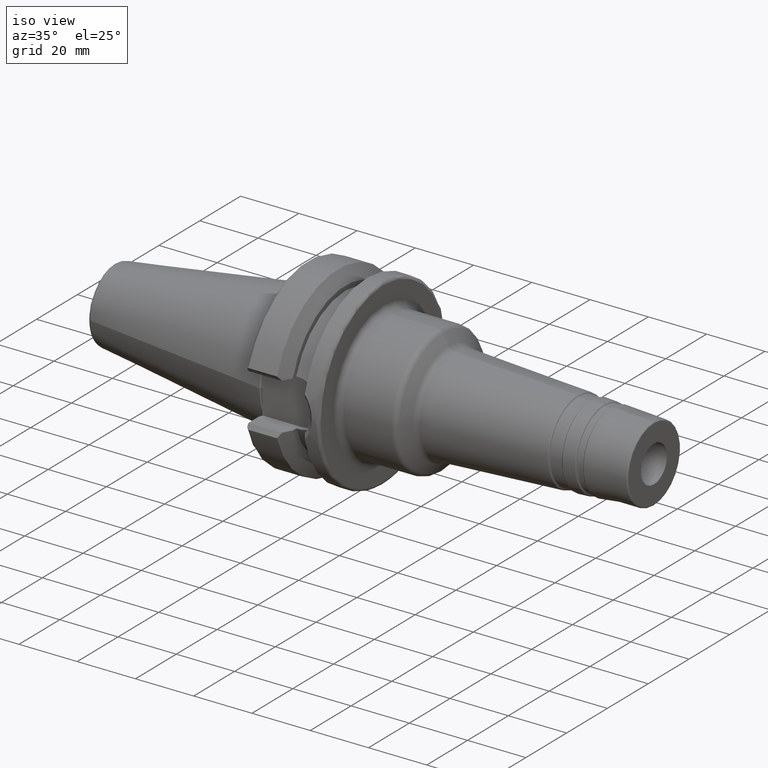
[diagram: clean part render]
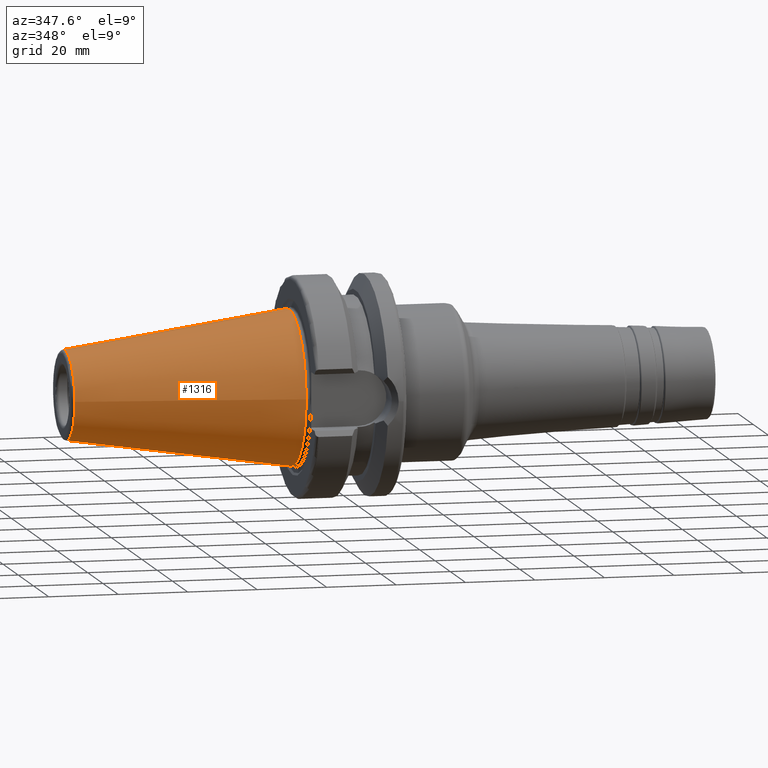
[diagram: tour spotlight — one face highlighted and labeled with its STEP entity id]
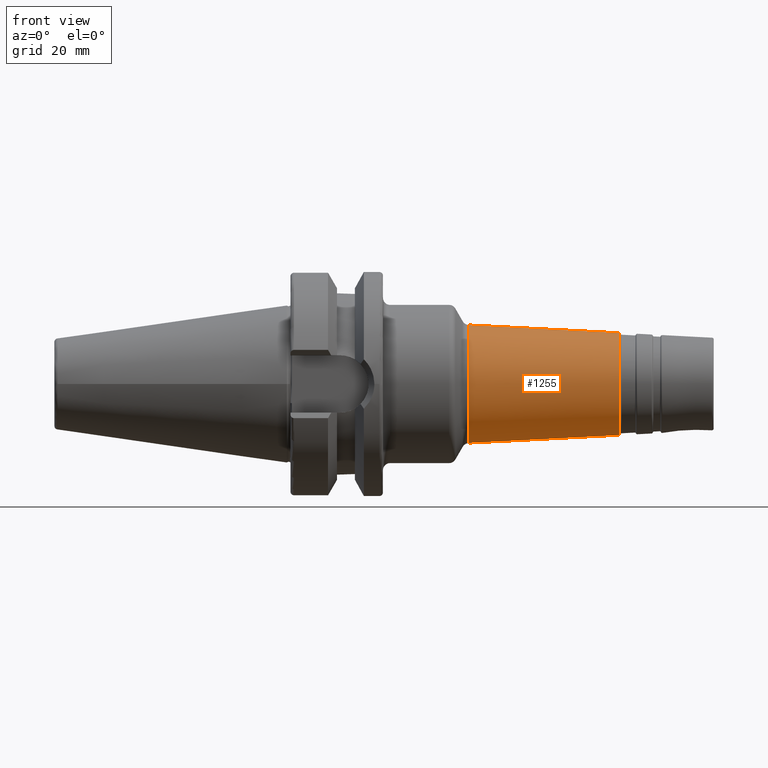
[diagram: tour spotlight — one face highlighted and labeled with its STEP entity id]
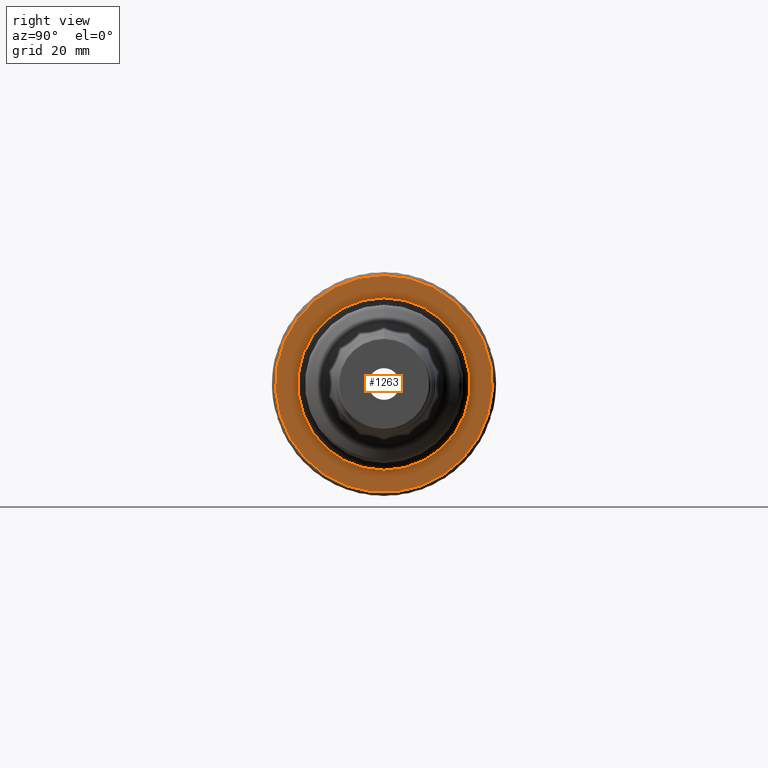
[diagram: tour spotlight — one face highlighted and labeled with its STEP entity id]
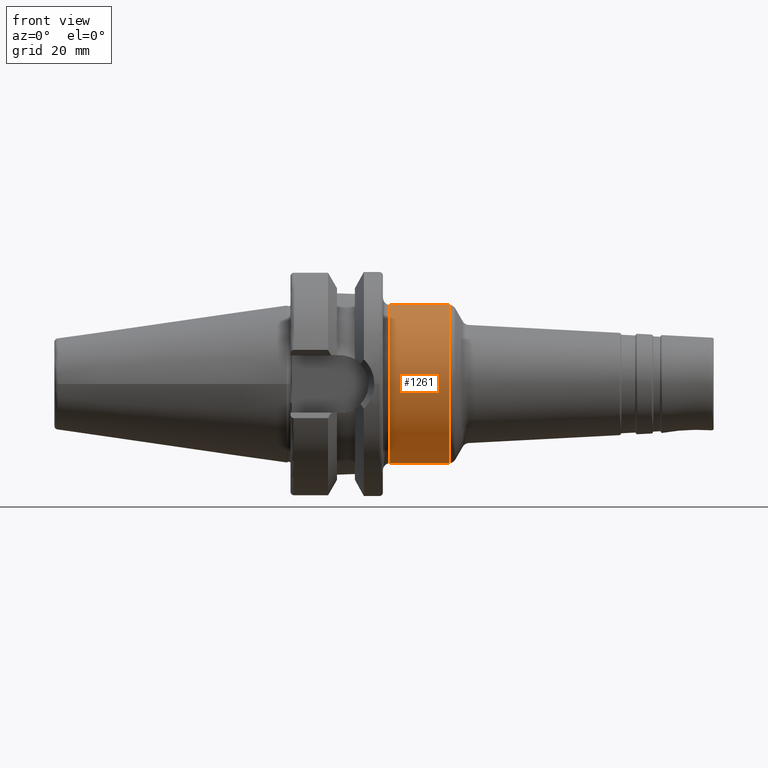
[diagram: tour spotlight — one face highlighted and labeled with its STEP entity id]
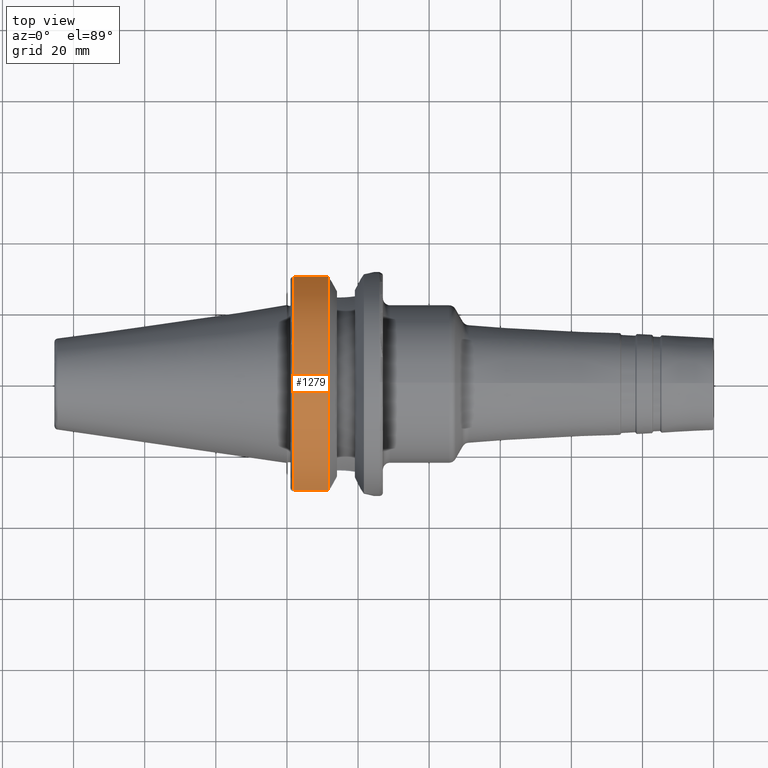
[diagram: tour spotlight — one face highlighted and labeled with its STEP entity id]
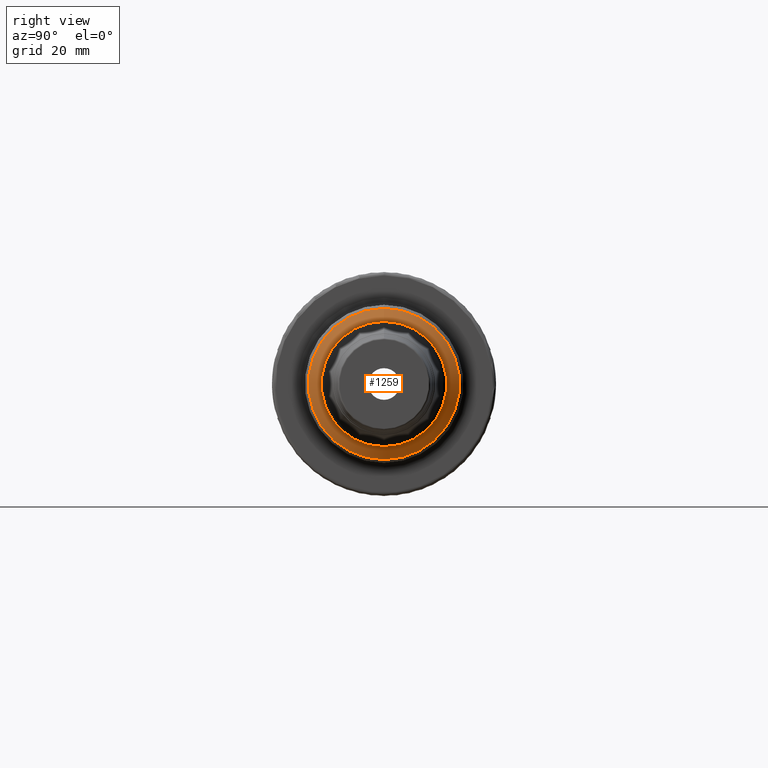
[diagram: tour spotlight — one face highlighted and labeled with its STEP entity id]
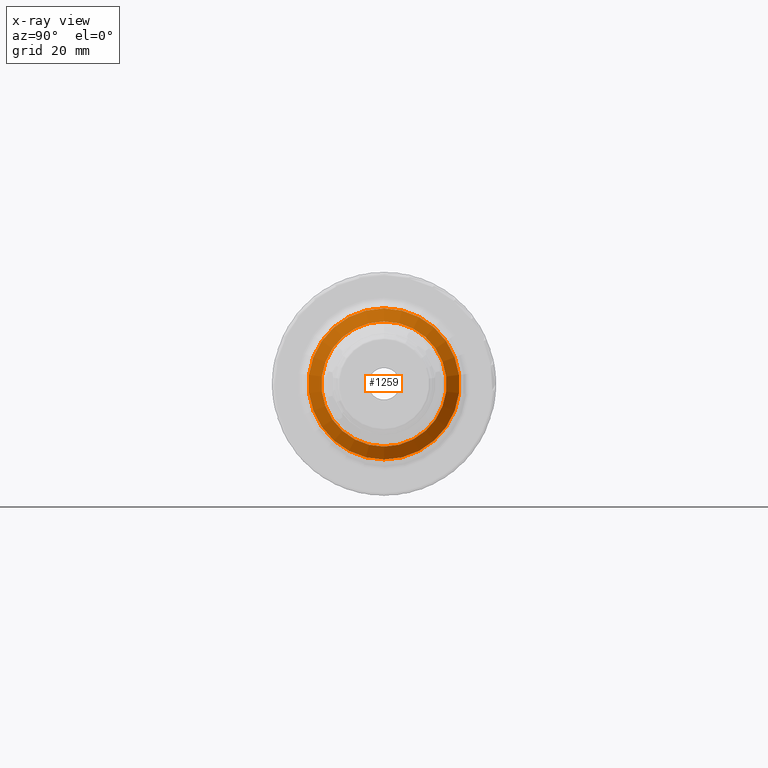
[diagram: x-ray of the same camera — body ghosted, this tour face saturated]
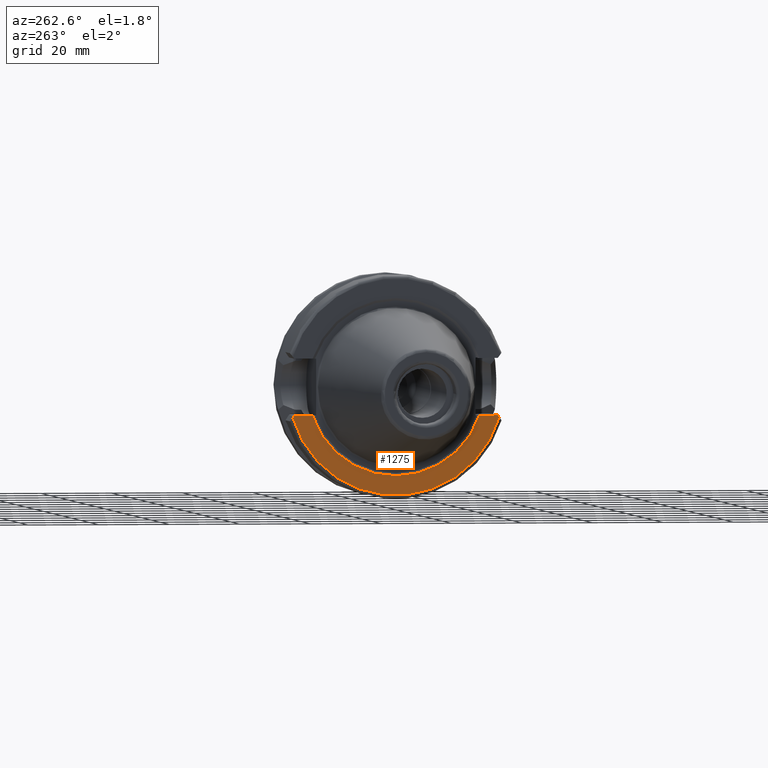
[diagram: tour spotlight — one face highlighted and labeled with its STEP entity id]
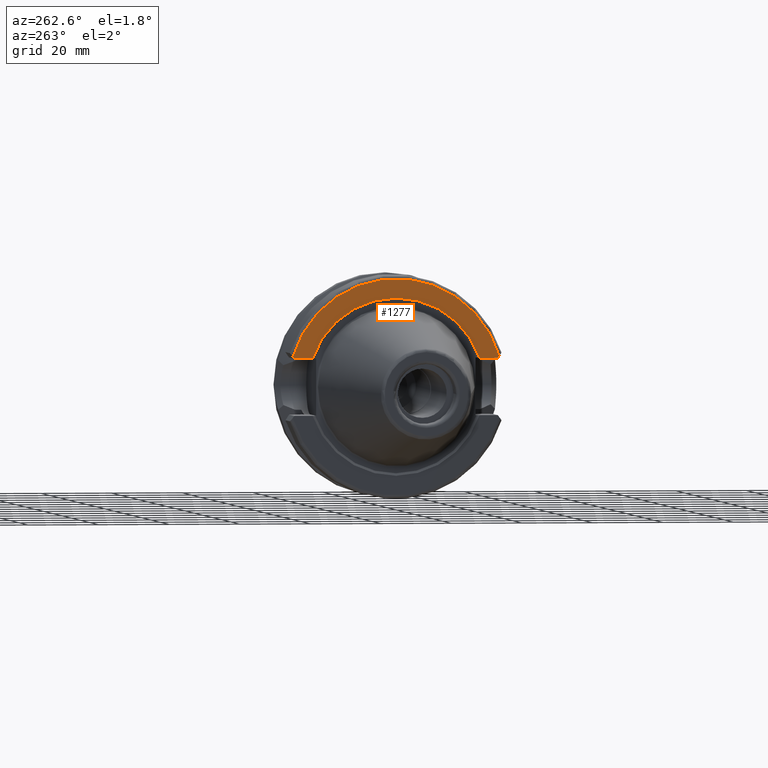
[diagram: tour spotlight — one face highlighted and labeled with its STEP entity id]
A machine part: a face-by-face anatomy tour. The part has 81 B-rep faces; the first image is the clean iso view, then the 8 largest visible faces are spotlighted one at a time (largest first), each with its STEP entity span.

Face 1 — auxiliary view, entity #1316. In plain terms, the highlighted conical surface has half-angle 8.297 deg.
Definition (entity closure, byte-faithful):
#162=LINE('',#2567,#231);
#231=VECTOR('',#1913,17.5186442890469);
#253=CONICAL_SURFACE('',#1506,17.5186442890469,0.144812498238939);
#332=FACE_OUTER_BOUND('',#419,.T.);
#419=EDGE_LOOP('',(#1200,#1201,#1202,#1203,#1204));
#508=CIRCLE('',#1503,12.8122885780937);
#509=CIRCLE('',#1504,12.8122885780937);
#511=CIRCLE('',#1507,22.225);
#630=VERTEX_POINT('',#2559);
#631=VERTEX_POINT('',#2560);
#632=VERTEX_POINT('',#2565);
#820=EDGE_CURVE('',#630,#631,#508,.T.);
#821=EDGE_CURVE('',#631,#630,#509,.T.);
#823=EDGE_CURVE('',#632,#632,#511,.T.);
#824=EDGE_CURVE('',#632,#630,#162,.T.);
#1200=ORIENTED_EDGE('',*,*,#823,.F.);
#1201=ORIENTED_EDGE('',*,*,#824,.T.);
#1202=ORIENTED_EDGE('',*,*,#820,.T.);
#1203=ORIENTED_EDGE('',*,*,#821,.T.);
#1204=ORIENTED_EDGE('',*,*,#824,.F.);
#1316=ADVANCED_FACE('',(#332),#253,.T.);
#1503=AXIS2_PLACEMENT_3D('',#2561,#1903,#1904);
#1504=AXIS2_PLACEMENT_3D('',#2562,#1905,#1906);
#1506=AXIS2_PLACEMENT_3D('',#2564,#1909,#1910);
#1507=AXIS2_PLACEMENT_3D('',#2566,#1911,#1912);
#1903=DIRECTION('center_axis',(1.,0.,0.));
#1904=DIRECTION('ref_axis',(0.,0.,-1.));
#1905=DIRECTION('center_axis',(1.,0.,0.));
#1906=DIRECTION('ref_axis',(0.,0.,-1.));
#1909=DIRECTION('center_axis',(1.,0.,0.));
#1910=DIRECTION('ref_axis',(0.,1.,0.));
#1911=DIRECTION('center_axis',(1.,0.,0.));
#1912=DIRECTION('ref_axis',(0.,0.,-1.));
#1913=DIRECTION('',(-0.989532981063281,0.144306893071729,1.76724974695192E-17));
#2559=CARTESIAN_POINT('',(-64.5443068930717,-12.8122885780937,-1.56905281969147E-15));
#2560=CARTESIAN_POINT('',(-64.5443068930717,-1.56905281969147E-15,12.8122885780937));
#2561=CARTESIAN_POINT('Origin',(-64.5443068930717,0.,0.));
#2562=CARTESIAN_POINT('Origin',(-64.5443068930717,0.,0.));
#2564=CARTESIAN_POINT('Origin',(-32.2721534465359,0.,0.));
#2565=CARTESIAN_POINT('',(4.44089209850063E-15,-22.225,-2.72177751110499E-15));
#2566=CARTESIAN_POINT('Origin',(0.,0.,0.));
#2567=CARTESIAN_POINT('',(-32.2721534465359,-17.5186442890469,-2.14541516539823E-15));

Face 2 — front view, entity #1255. In plain terms, the highlighted conical surface has half-angle 3 deg.
Definition (entity closure, byte-faithful):
#104=LINE('',#1999,#173);
#173=VECTOR('',#1609,15.5220467206609);
#242=CONICAL_SURFACE('',#1384,15.5220467206609,0.0523598775598296);
#271=FACE_OUTER_BOUND('',#352,.T.);
#352=EDGE_LOOP('',(#895,#896,#897,#898));
#447=CIRCLE('',#1383,14.387635362879);
#448=CIRCLE('',#1385,16.6117123383366);
#532=VERTEX_POINT('',#1994);
#533=VERTEX_POINT('',#1998);
#668=EDGE_CURVE('',#532,#532,#447,.T.);
#669=EDGE_CURVE('',#532,#533,#104,.T.);
#670=EDGE_CURVE('',#533,#533,#448,.T.);
#895=ORIENTED_EDGE('',*,*,#668,.F.);
#896=ORIENTED_EDGE('',*,*,#669,.T.);
#897=ORIENTED_EDGE('',*,*,#670,.F.);
#898=ORIENTED_EDGE('',*,*,#669,.F.);
#1255=ADVANCED_FACE('',(#271),#242,.T.);
#1383=AXIS2_PLACEMENT_3D('',#1996,#1605,#1606);
#1384=AXIS2_PLACEMENT_3D('',#1997,#1607,#1608);
#1385=AXIS2_PLACEMENT_3D('',#2000,#1610,#1611);
#1605=DIRECTION('center_axis',(1.,0.,0.));
#1606=DIRECTION('ref_axis',(0.,1.71340895612076E-32,1.));
#1607=DIRECTION('center_axis',(-1.,0.,0.));
#1608=DIRECTION('ref_axis',(0.,0.,-1.));
#1609=DIRECTION('',(-0.998629534754574,-6.40930612932367E-18,0.0523359562429435));
#1610=DIRECTION('center_axis',(-1.,0.,0.));
#1611=DIRECTION('ref_axis',(0.,0.,1.));
#1994=CARTESIAN_POINT('',(93.522339968181,-1.7619771594449E-15,14.387635362879));
#1996=CARTESIAN_POINT('Origin',(93.522339968181,-1.7619771594449E-15,0.));
#1997=CARTESIAN_POINT('Origin',(71.8764817902328,0.,0.));
#1998=CARTESIAN_POINT('',(51.0844231954446,-2.03434803435005E-15,16.6117123383366));
#1999=CARTESIAN_POINT('',(71.8764817902328,-1.9009024832673E-15,15.5220467206609));
#2000=CARTESIAN_POINT('Origin',(51.0844231954446,-2.03434803435005E-15,
0.));

Face 3 — right view, entity #1263. In plain terms, the highlighted planar face has unit normal (1, 0, 0).
Definition (entity closure, byte-faithful):
#67=FACE_BOUND('',#362,.T.);
#73=PLANE('',#1405);
#279=FACE_OUTER_BOUND('',#361,.T.);
#361=EDGE_LOOP('',(#927));
#362=EDGE_LOOP('',(#928));
#460=CIRCLE('',#1404,24.25);
#461=CIRCLE('',#1406,30.5);
#541=VERTEX_POINT('',#2027);
#542=VERTEX_POINT('',#2031);
#684=EDGE_CURVE('',#541,#541,#460,.T.);
#685=EDGE_CURVE('',#542,#542,#461,.T.);
#927=ORIENTED_EDGE('',*,*,#685,.T.);
#928=ORIENTED_EDGE('',*,*,#684,.F.);
#1263=ADVANCED_FACE('',(#279,#67),#73,.T.);
#1404=AXIS2_PLACEMENT_3D('',#2029,#1650,#1651);
#1405=AXIS2_PLACEMENT_3D('',#2030,#1652,#1653);
#1406=AXIS2_PLACEMENT_3D('',#2032,#1654,#1655);
#1650=DIRECTION('center_axis',(1.,0.,0.));
#1651=DIRECTION('ref_axis',(0.,-1.22464679914735E-16,1.));
#1652=DIRECTION('center_axis',(1.,0.,0.));
#1653=DIRECTION('ref_axis',(0.,0.,-1.));
#1654=DIRECTION('center_axis',(1.,0.,0.));
#1655=DIRECTION('ref_axis',(0.,0.,-1.));
#2027=CARTESIAN_POINT('',(27.,5.93953697586466E-15,-24.25));
#2029=CARTESIAN_POINT('Origin',(27.,0.,0.));
#2030=CARTESIAN_POINT('Origin',(27.,0.,0.));
#2031=CARTESIAN_POINT('',(27.,-3.73517273739943E-15,30.5));
#2032=CARTESIAN_POINT('Origin',(27.,0.,0.));

Face 4 — front view, entity #1261. In plain terms, the highlighted cylindrical surface (bore or boss wall) has radius 22.25 mm, axis along (1, 0, 0).
Definition (entity closure, byte-faithful):
#50=CYLINDRICAL_SURFACE('',#1399,22.25);
#106=LINE('',#2022,#175);
#175=VECTOR('',#1641,22.25);
#277=FACE_OUTER_BOUND('',#359,.T.);
#359=EDGE_LOOP('',(#917,#918,#919,#920,#921));
#456=CIRCLE('',#1398,22.25);
#457=CIRCLE('',#1400,22.25);
#458=CIRCLE('',#1401,22.25);
#538=VERTEX_POINT('',#2017);
#539=VERTEX_POINT('',#2021);
#540=VERTEX_POINT('',#2023);
#679=EDGE_CURVE('',#538,#538,#456,.T.);
#680=EDGE_CURVE('',#538,#539,#106,.T.);
#681=EDGE_CURVE('',#540,#539,#457,.T.);
#682=EDGE_CURVE('',#539,#540,#458,.T.);
#917=ORIENTED_EDGE('',*,*,#679,.F.);
#918=ORIENTED_EDGE('',*,*,#680,.T.);
#919=ORIENTED_EDGE('',*,*,#681,.F.);
#920=ORIENTED_EDGE('',*,*,#682,.F.);
#921=ORIENTED_EDGE('',*,*,#680,.F.);
#1261=ADVANCED_FACE('',(#277),#50,.T.);
#1398=AXIS2_PLACEMENT_3D('',#2019,#1637,#1638);
#1399=AXIS2_PLACEMENT_3D('',#2020,#1639,#1640);
#1400=AXIS2_PLACEMENT_3D('',#2024,#1642,#1643);
#1401=AXIS2_PLACEMENT_3D('',#2025,#1644,#1645);
#1637=DIRECTION('center_axis',(1.,0.,0.));
#1638=DIRECTION('ref_axis',(0.,1.22464679914735E-16,1.));
#1639=DIRECTION('center_axis',(1.,0.,0.));
#1640=DIRECTION('ref_axis',(0.,0.,-1.));
#1641=DIRECTION('',(-1.,0.,0.));
#1642=DIRECTION('center_axis',(-1.,0.,0.));
#1643=DIRECTION('ref_axis',(0.,-1.22464679914735E-16,1.));
#1644=DIRECTION('center_axis',(-1.,0.,0.));
#1645=DIRECTION('ref_axis',(0.,-1.22464679914735E-16,1.));
#2017=CARTESIAN_POINT('',(45.6228446549853,-2.72483912810286E-15,22.25));
#2019=CARTESIAN_POINT('Origin',(45.6228446549853,0.,0.));
#2020=CARTESIAN_POINT('Origin',(36.8887725966823,0.,0.));
#2021=CARTESIAN_POINT('',(29.,-2.72483912810286E-15,22.25));
#2022=CARTESIAN_POINT('',(36.8887725966823,-2.72483912810286E-15,22.25));
#2023=CARTESIAN_POINT('',(29.,0.,-22.25));
#2024=CARTESIAN_POINT('Origin',(29.,0.,0.));
#2025=CARTESIAN_POINT('Origin',(29.,0.,0.));

Face 5 — top view, entity #1279. In plain terms, the highlighted cylindrical surface (partial cylindrical patch) has radius 31.5 mm, axis along (1, 0, 0).
Definition (entity closure, byte-faithful):
#56=CYLINDRICAL_SURFACE('',#1439,31.5);
#118=LINE('',#2247,#187);
#124=LINE('',#2288,#193);
#187=VECTOR('',#1721,10.);
#193=VECTOR('',#1741,10.);
#295=FACE_OUTER_BOUND('',#380,.T.);
#380=EDGE_LOOP('',(#1000,#1001,#1002,#1003));
#479=CIRCLE('',#1438,31.5);
#480=CIRCLE('',#1440,31.5000000000001);
#573=VERTEX_POINT('',#2242);
#574=VERTEX_POINT('',#2246);
#581=VERTEX_POINT('',#2273);
#582=VERTEX_POINT('',#2286);
#725=EDGE_CURVE('',#573,#574,#118,.T.);
#734=EDGE_CURVE('',#581,#574,#479,.T.);
#736=EDGE_CURVE('',#582,#573,#480,.T.);
#737=EDGE_CURVE('',#581,#582,#124,.T.);
#1000=ORIENTED_EDGE('',*,*,#725,.F.);
#1001=ORIENTED_EDGE('',*,*,#736,.F.);
#1002=ORIENTED_EDGE('',*,*,#737,.F.);
#1003=ORIENTED_EDGE('',*,*,#734,.T.);
#1279=ADVANCED_FACE('',(#295),#56,.T.);
#1438=AXIS2_PLACEMENT_3D('',#2274,#1735,#1736);
#1439=AXIS2_PLACEMENT_3D('',#2285,#1737,#1738);
#1440=AXIS2_PLACEMENT_3D('',#2287,#1739,#1740);
#1721=DIRECTION('',(-1.,0.,0.));
#1735=DIRECTION('center_axis',(1.,0.,0.));
#1736=DIRECTION('ref_axis',(0.,0.,-1.));
#1737=DIRECTION('center_axis',(1.,0.,0.));
#1738=DIRECTION('ref_axis',(0.,1.,0.));
#1739=DIRECTION('center_axis',(1.,0.,0.));
#1740=DIRECTION('ref_axis',(0.,0.,-1.));
#1741=DIRECTION('',(1.,0.,0.));
#2242=CARTESIAN_POINT('',(11.5690363073381,-30.0059801089944,9.58598757033588));
#2246=CARTESIAN_POINT('',(1.99999999999999,-30.0059801089944,9.58598757033586));
#2247=CARTESIAN_POINT('',(6.78451815366905,-30.0059801089944,9.58598757033587));
#2273=CARTESIAN_POINT('',(1.99999999999999,30.0059801089944,9.58598757033586));
#2274=CARTESIAN_POINT('Origin',(1.99999999999999,0.,0.));
#2285=CARTESIAN_POINT('Origin',(6.78451815366905,0.,0.));
#2286=CARTESIAN_POINT('',(11.5690363073381,30.0059801089944,9.58598757033588));
#2287=CARTESIAN_POINT('Origin',(11.5690363073381,0.,0.));
#2288=CARTESIAN_POINT('',(6.78451815366905,30.0059801089944,9.58598757033587));

Face 6 — right view, entity #1259. An x-ray twin of the same camera follows (body ghosted, this face saturated) — the face is partly hidden behind the body. In plain terms, the highlighted conical surface has half-angle 60 deg.
Definition (entity closure, byte-faithful):
#105=LINE('',#2014,#174);
#174=VECTOR('',#1630,19.4592722749064);
#243=CONICAL_SURFACE('',#1394,19.4592722749064,1.0471975511966);
#275=FACE_OUTER_BOUND('',#357,.T.);
#357=EDGE_LOOP('',(#909,#910,#911,#912));
#452=CIRCLE('',#1392,17.6089714078457);
#454=CIRCLE('',#1395,21.25);
#536=VERTEX_POINT('',#2009);
#537=VERTEX_POINT('',#2013);
#674=EDGE_CURVE('',#536,#536,#452,.T.);
#676=EDGE_CURVE('',#536,#537,#105,.T.);
#677=EDGE_CURVE('',#537,#537,#454,.T.);
#909=ORIENTED_EDGE('',*,*,#674,.F.);
#910=ORIENTED_EDGE('',*,*,#676,.T.);
#911=ORIENTED_EDGE('',*,*,#677,.F.);
#912=ORIENTED_EDGE('',*,*,#676,.F.);
#1259=ADVANCED_FACE('',(#275),#243,.T.);
#1392=AXIS2_PLACEMENT_3D('',#2010,#1624,#1625);
#1394=AXIS2_PLACEMENT_3D('',#2012,#1628,#1629);
#1395=AXIS2_PLACEMENT_3D('',#2015,#1631,#1632);
#1624=DIRECTION('center_axis',(1.,0.,0.));
#1625=DIRECTION('ref_axis',(0.,0.,1.));
#1628=DIRECTION('center_axis',(-1.,0.,0.));
#1629=DIRECTION('ref_axis',(0.,0.,-1.));
#1630=DIRECTION('',(-0.499999999999999,-1.06057523872491E-16,0.866025403784439));
#1631=DIRECTION('center_axis',(-1.,0.,0.));
#1632=DIRECTION('ref_axis',(0.,0.,1.));
#2009=CARTESIAN_POINT('',(49.4570443003616,-2.15647704708956E-15,17.6089714078457));
#2010=CARTESIAN_POINT('Origin',(49.4570443003616,-2.15647704708956E-15,
0.));
#2012=CARTESIAN_POINT('Origin',(48.3887725966823,0.,0.));
#2013=CARTESIAN_POINT('',(47.3548954625542,-2.60237444818813E-15,21.25));
#2014=CARTESIAN_POINT('',(48.3887725966823,-2.3830735505201E-15,19.4592722749064));
#2015=CARTESIAN_POINT('Origin',(47.3548954625542,-2.60237444818813E-15,
0.));

Face 7 — auxiliary view, entity #1275. In plain terms, the highlighted planar face has unit normal (-1, 0, 0).
Definition (entity closure, byte-faithful):
#77=PLANE('',#1431);
#113=LINE('',#2212,#182);
#115=LINE('',#2234,#184);
#116=LINE('',#2238,#185);
#117=LINE('',#2239,#186);
#182=VECTOR('',#1700,10.);
#184=VECTOR('',#1714,10.);
#185=VECTOR('',#1717,10.);
#186=VECTOR('',#1718,10.);
#291=FACE_OUTER_BOUND('',#376,.T.);
#376=EDGE_LOOP('',(#979,#980,#981,#982,#983,#984));
#475=CIRCLE('',#1430,30.5);
#476=CIRCLE('',#1432,25.);
#561=VERTEX_POINT('',#2192);
#565=VERTEX_POINT('',#2210);
#568=VERTEX_POINT('',#2220);
#569=VERTEX_POINT('',#2233);
#570=VERTEX_POINT('',#2235);
#571=VERTEX_POINT('',#2237);
#714=EDGE_CURVE('',#565,#561,#113,.T.);
#718=EDGE_CURVE('',#561,#568,#475,.T.);
#720=EDGE_CURVE('',#565,#569,#115,.T.);
#721=EDGE_CURVE('',#569,#570,#476,.T.);
#722=EDGE_CURVE('',#570,#571,#116,.T.);
#723=EDGE_CURVE('',#568,#571,#117,.T.);
#979=ORIENTED_EDGE('',*,*,#714,.F.);
#980=ORIENTED_EDGE('',*,*,#720,.T.);
#981=ORIENTED_EDGE('',*,*,#721,.T.);
#982=ORIENTED_EDGE('',*,*,#722,.T.);
#983=ORIENTED_EDGE('',*,*,#723,.F.);
#984=ORIENTED_EDGE('',*,*,#718,.F.);
#1275=ADVANCED_FACE('',(#291),#77,.T.);
#1430=AXIS2_PLACEMENT_3D('',#2221,#1710,#1711);
#1431=AXIS2_PLACEMENT_3D('',#2232,#1712,#1713);
#1432=AXIS2_PLACEMENT_3D('',#2236,#1715,#1716);
#1700=DIRECTION('',(0.,-0.599988902555658,-0.800008322962991));
#1710=DIRECTION('center_axis',(1.,0.,0.));
#1711=DIRECTION('ref_axis',(0.,0.,-1.));
#1712=DIRECTION('center_axis',(-1.,0.,0.));
#1713=DIRECTION('ref_axis',(0.,0.,1.));
#1714=DIRECTION('',(0.,1.,0.));
#1715=DIRECTION('center_axis',(1.,0.,0.));
#1716=DIRECTION('ref_axis',(0.,0.,-1.));
#1717=DIRECTION('',(0.,1.,0.));
#1718=DIRECTION('',(0.,-0.599988902555658,0.800008322962991));
#2192=CARTESIAN_POINT('',(0.999999999999992,-29.2635810473993,-8.59609354778619));
#2210=CARTESIAN_POINT('',(0.999999999999993,-28.8540227227866,-8.05));
#2212=CARTESIAN_POINT('',(0.999999999999993,-16.5266988165472,8.38690688751911));
#2220=CARTESIAN_POINT('',(0.999999999999992,29.2635810473993,-8.59609354778619));
#2221=CARTESIAN_POINT('Origin',(0.999999999999992,0.,0.));
#2232=CARTESIAN_POINT('Origin',(0.999999999999993,30.5,0.));
#2233=CARTESIAN_POINT('',(1.,-23.6684917136686,-8.05));
#2234=CARTESIAN_POINT('',(0.999999999999993,3.95,-8.05));
#2235=CARTESIAN_POINT('',(1.,23.6684917136686,-8.05));
#2236=CARTESIAN_POINT('Origin',(1.,0.,0.));
#2237=CARTESIAN_POINT('',(0.999999999999993,28.8540227227866,-8.05));
#2238=CARTESIAN_POINT('',(0.999999999999993,26.55,-8.05));
#2239=CARTESIAN_POINT('',(0.999999999999993,27.5062926538405,-6.25297464224459));

Face 8 — auxiliary view, entity #1277. In plain terms, the highlighted planar face has unit normal (-1, 0, 0).
Definition (entity closure, byte-faithful):
#79=PLANE('',#1434);
#119=LINE('',#2260,#188);
#121=LINE('',#2266,#190);
#122=LINE('',#2268,#191);
#123=LINE('',#2271,#192);
#188=VECTOR('',#1722,10.);
#190=VECTOR('',#1728,10.);
#191=VECTOR('',#1729,10.);
#192=VECTOR('',#1732,10.);
#293=FACE_OUTER_BOUND('',#378,.T.);
#378=EDGE_LOOP('',(#990,#991,#992,#993,#994,#995));
#477=CIRCLE('',#1435,30.5);
#478=CIRCLE('',#1436,25.);
#575=VERTEX_POINT('',#2248);
#576=VERTEX_POINT('',#2259);
#577=VERTEX_POINT('',#2263);
#578=VERTEX_POINT('',#2265);
#579=VERTEX_POINT('',#2267);
#580=VERTEX_POINT('',#2269);
#727=EDGE_CURVE('',#575,#576,#119,.T.);
#729=EDGE_CURVE('',#577,#575,#477,.T.);
#730=EDGE_CURVE('',#578,#577,#121,.T.);
#731=EDGE_CURVE('',#578,#579,#122,.T.);
#732=EDGE_CURVE('',#579,#580,#478,.T.);
#733=EDGE_CURVE('',#580,#576,#123,.T.);
#990=ORIENTED_EDGE('',*,*,#727,.F.);
#991=ORIENTED_EDGE('',*,*,#729,.F.);
#992=ORIENTED_EDGE('',*,*,#730,.F.);
#993=ORIENTED_EDGE('',*,*,#731,.T.);
#994=ORIENTED_EDGE('',*,*,#732,.T.);
#995=ORIENTED_EDGE('',*,*,#733,.T.);
#1277=ADVANCED_FACE('',(#293),#79,.T.);
#1434=AXIS2_PLACEMENT_3D('',#2262,#1724,#1725);
#1435=AXIS2_PLACEMENT_3D('',#2264,#1726,#1727);
#1436=AXIS2_PLACEMENT_3D('',#2270,#1730,#1731);
#1722=DIRECTION('',(0.,0.599988902555658,-0.800008322962991));
#1724=DIRECTION('center_axis',(-1.,0.,0.));
#1725=DIRECTION('ref_axis',(0.,0.,1.));
#1726=DIRECTION('center_axis',(1.,0.,0.));
#1727=DIRECTION('ref_axis',(0.,0.,-1.));
#1728=DIRECTION('',(0.,0.599988902555658,0.800008322962991));
#1729=DIRECTION('',(0.,-1.,0.));
#1730=DIRECTION('center_axis',(1.,0.,0.));
#1731=DIRECTION('ref_axis',(0.,0.,-1.));
#1732=DIRECTION('',(0.,-1.,0.));
#2248=CARTESIAN_POINT('',(0.999999999999992,-29.2635810473993,8.59609354778619));
#2259=CARTESIAN_POINT('',(0.999999999999993,-28.8540227227866,8.05));
#2260=CARTESIAN_POINT('',(0.999999999999992,-16.5266988165472,-8.38690688751911));
#2262=CARTESIAN_POINT('Origin',(0.999999999999993,30.5,0.));
#2263=CARTESIAN_POINT('',(0.999999999999992,29.2635810473993,8.59609354778619));
#2264=CARTESIAN_POINT('Origin',(0.999999999999992,0.,0.));
#2265=CARTESIAN_POINT('',(0.999999999999993,28.8540227227866,8.05));
#2266=CARTESIAN_POINT('',(0.999999999999992,27.5062926538405,6.25297464224459));
#2267=CARTESIAN_POINT('',(1.00000000000002,23.6684917136686,8.05));
#2268=CARTESIAN_POINT('',(0.999999999999993,26.55,8.05));
#2269=CARTESIAN_POINT('',(1.00000000000002,-23.6684917136686,8.05));
#2270=CARTESIAN_POINT('Origin',(1.,0.,0.));
#2271=CARTESIAN_POINT('',(0.999999999999993,3.95,8.05));